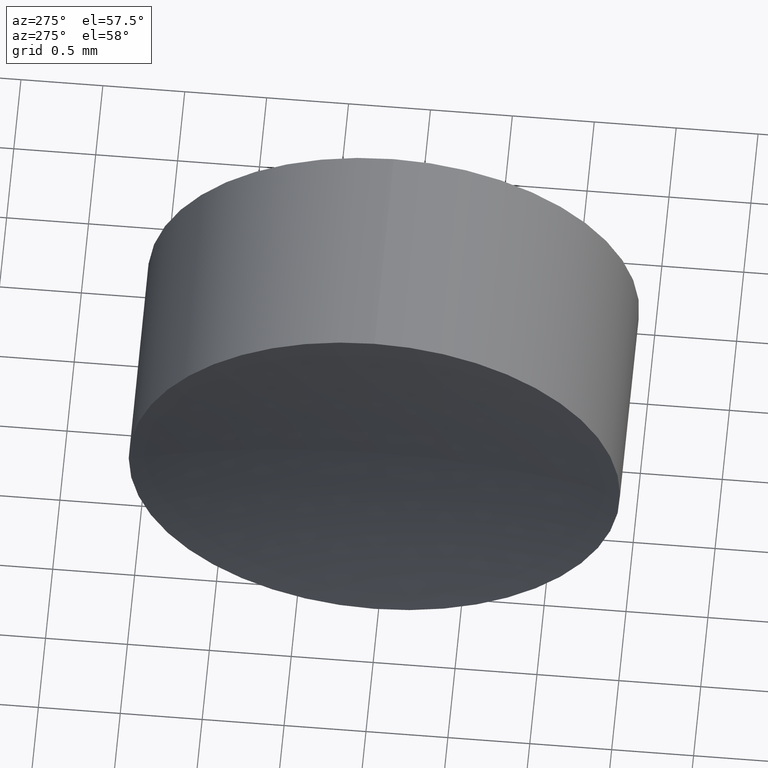
[diagram: clean part render]
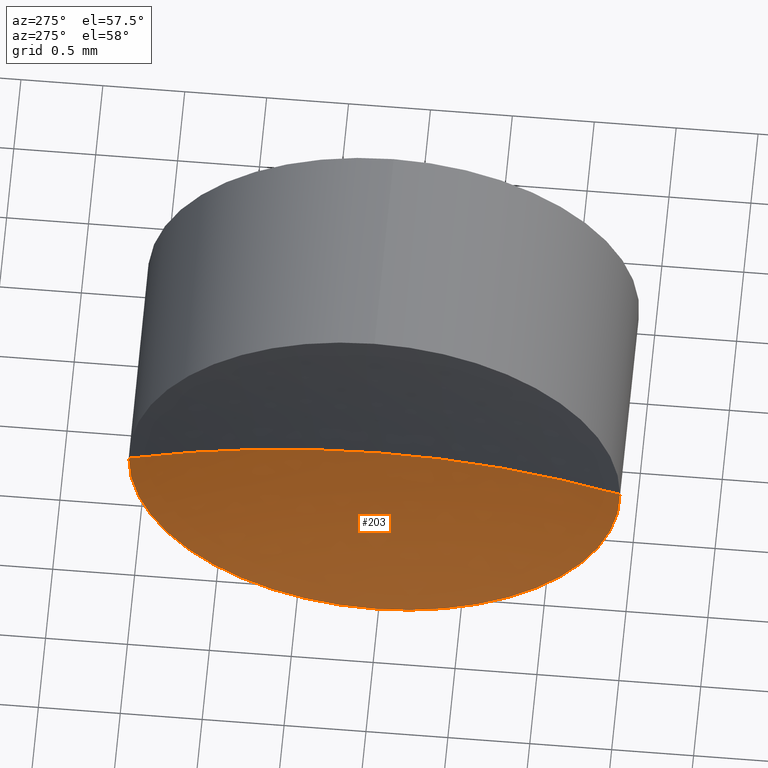
[diagram: same view with one face highlighted and labeled with its STEP entity id]
A machine part, auxiliary view. The second image highlights one B-rep face of the part: STEP entity #203.
In plain terms, the highlighted spherical surface has radius 6.67 mm.
Its self-contained STEP definition (entity closure, byte-faithful):
#10 = EDGE_CURVE ( 'NONE', #64, #173, #149, .T. ) ;
#17 = AXIS2_PLACEMENT_3D ( 'NONE', #98, #39, #37 ) ;
#21 = CARTESIAN_POINT ( 'NONE',  ( 11.34326470139478900, 8.022260287298737000, 0.0000000000000000000 ) ) ;
#22 = DIRECTION ( 'NONE',  ( 0.0000000000000000000, 1.000000000000000000, 0.0000000000000000000 ) ) ;
#24 = DIRECTION ( 'NONE',  ( 0.0000000000000000000, 1.000000000000000000, 1.224646799147353200E-016 ) ) ;
#26 = DIRECTION ( 'NONE',  ( 1.000000000000000000, 0.0000000000000000000, 0.0000000000000000000 ) ) ;
#29 = AXIS2_PLACEMENT_3D ( 'NONE', #110, #199, #195 ) ;
#31 = ORIENTED_EDGE ( 'NONE', *, *, #191, .T. ) ;
#37 = DIRECTION ( 'NONE',  ( 0.0000000000000000000, 0.0000000000000000000, 1.000000000000000000 ) ) ;
#39 = DIRECTION ( 'NONE',  ( -1.000000000000000000, -0.0000000000000000000, -0.0000000000000000000 ) ) ;
#47 = ORIENTED_EDGE ( 'NONE', *, *, #107, .T. ) ;
#52 = EDGE_LOOP ( 'NONE', ( #208, #31, #47, #165 ) ) ;
#54 = SPHERICAL_SURFACE ( 'NONE', #66, 6.669999999999999000 ) ;
#56 = EDGE_CURVE ( 'NONE', #123, #173, #105, .T. ) ;
#60 = DIRECTION ( 'NONE',  ( 0.0000000000000000000, 0.0000000000000000000, -1.000000000000000000 ) ) ;
#64 = VERTEX_POINT ( 'NONE', #177 ) ;
#66 = AXIS2_PLACEMENT_3D ( 'NONE', #116, #60, #22 ) ;
#68 = DIRECTION ( 'NONE',  ( 0.0000000000000000000, 0.0000000000000000000, 1.000000000000000000 ) ) ;
#82 = FACE_OUTER_BOUND ( 'NONE', #52, .T. ) ;
#86 = CARTESIAN_POINT ( 'NONE',  ( 11.34326470139478900, 5.022260287298740500, -1.836970198721027700E-016 ) ) ;
#97 = CARTESIAN_POINT ( 'NONE',  ( 4.844118603637024700, 6.522260287298738700, 0.0000000000000000000 ) ) ;
#98 = CARTESIAN_POINT ( 'NONE',  ( 11.34326470139479100, 6.522260287298739600, 0.0000000000000000000 ) ) ;
#101 = CARTESIAN_POINT ( 'NONE',  ( 11.51411860363702300, 6.522260287298738700, 0.0000000000000000000 ) ) ;
#105 = CIRCLE ( 'NONE', #186, 6.669999999999999000 ) ;
#107 = EDGE_CURVE ( 'NONE', #169, #64, #184, .T. ) ;
#110 = CARTESIAN_POINT ( 'NONE',  ( 11.34326470139479100, 6.522260287298739600, 0.0000000000000000000 ) ) ;
#116 = CARTESIAN_POINT ( 'NONE',  ( 4.844118603637024700, 6.522260287298738700, 0.0000000000000000000 ) ) ;
#122 = CIRCLE ( 'NONE', #126, 6.669999999999998200 ) ;
#123 = VERTEX_POINT ( 'NONE', #101 ) ;
#126 = AXIS2_PLACEMENT_3D ( 'NONE', #97, #68, #26 ) ;
#149 = CIRCLE ( 'NONE', #29, 1.499999999999996900 ) ;
#160 = CARTESIAN_POINT ( 'NONE',  ( 4.844118603637024700, 6.522260287298738700, 0.0000000000000000000 ) ) ;
#165 = ORIENTED_EDGE ( 'NONE', *, *, #10, .T. ) ;
#169 = VERTEX_POINT ( 'NONE', #21 ) ;
#173 = VERTEX_POINT ( 'NONE', #86 ) ;
#174 = DIRECTION ( 'NONE',  ( 0.0000000000000000000, 1.224646799147353200E-016, -1.000000000000000000 ) ) ;
#177 = CARTESIAN_POINT ( 'NONE',  ( 11.34326470139479100, 6.522260287298739600, -1.499999999999996900 ) ) ;
#184 = CIRCLE ( 'NONE', #17, 1.499999999999996900 ) ;
#186 = AXIS2_PLACEMENT_3D ( 'NONE', #160, #174, #24 ) ;
#191 = EDGE_CURVE ( 'NONE', #123, #169, #122, .T. ) ;
#195 = DIRECTION ( 'NONE',  ( 0.0000000000000000000, 0.0000000000000000000, 1.000000000000000000 ) ) ;
#199 = DIRECTION ( 'NONE',  ( -1.000000000000000000, -0.0000000000000000000, -0.0000000000000000000 ) ) ;
#203 = ADVANCED_FACE ( 'NONE', ( #82 ), #54, .F. ) ;
#208 = ORIENTED_EDGE ( 'NONE', *, *, #56, .F. ) ;